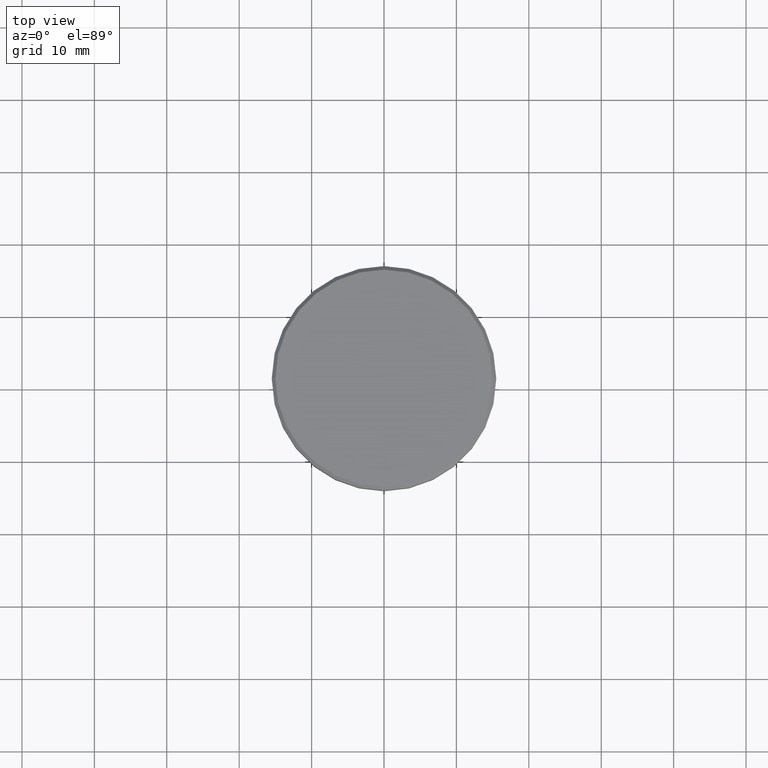
[diagram: clean part render]
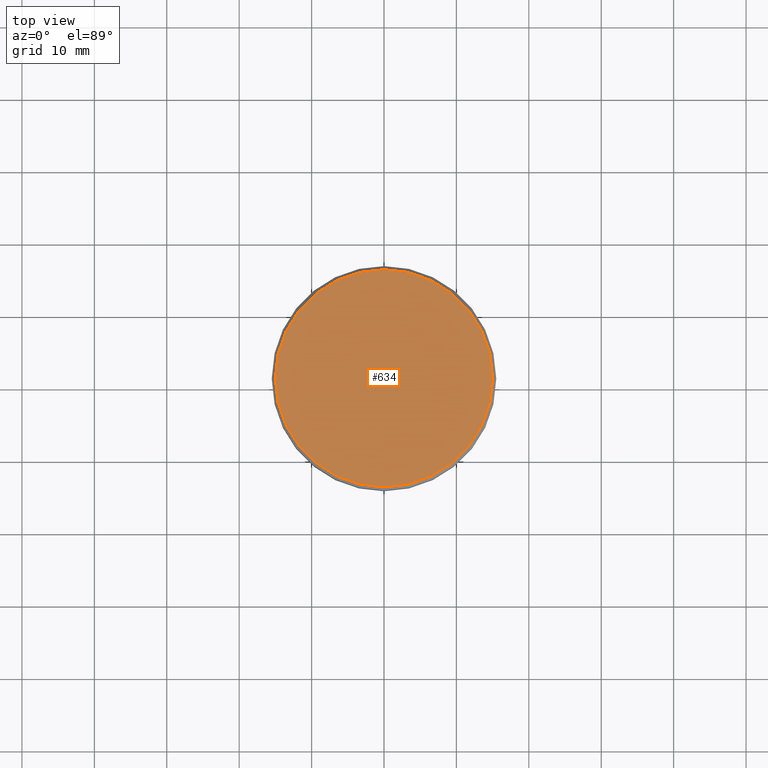
[diagram: same view with one face highlighted and labeled with its STEP entity id]
A machine part, top view. The second image highlights one B-rep face of the part: STEP entity #634.
In plain terms, the highlighted planar face has unit normal (0, -0, 1).
Its self-contained STEP definition (entity closure, byte-faithful):
#17 = VERTEX_POINT ( 'NONE', #867 ) ;
#20 = AXIS2_PLACEMENT_3D ( 'NONE', #751, #98, #919 ) ;
#55 = CARTESIAN_POINT ( 'NONE',  ( -15.00000000000000000, 0.000000000000000000, 0.000000000000000000 ) ) ;
#83 = PLANE ( 'NONE',  #145 ) ;
#92 = CARTESIAN_POINT ( 'NONE',  ( 0.000000000000000000, 0.000000000000000000, 0.000000000000000000 ) ) ;
#98 = DIRECTION ( 'NONE',  ( -0.000000000000000000, -0.000000000000000000, 1.000000000000000000 ) ) ;
#145 = AXIS2_PLACEMENT_3D ( 'NONE', #712, #1159, #602 ) ;
#201 = EDGE_CURVE ( 'NONE', #500, #17, #503, .T. ) ;
#340 = EDGE_CURVE ( 'NONE', #17, #500, #842, .T. ) ;
#344 = DIRECTION ( 'NONE',  ( 1.000000000000000000, 0.000000000000000000, 0.000000000000000000 ) ) ;
#500 = VERTEX_POINT ( 'NONE', #55 ) ;
#503 = CIRCLE ( 'NONE', #826, 15.00000000000000000 ) ;
#573 = ORIENTED_EDGE ( 'NONE', *, *, #201, .T. ) ;
#602 = DIRECTION ( 'NONE',  ( 1.000000000000000000, 0.000000000000000000, 0.000000000000000000 ) ) ;
#614 = FACE_OUTER_BOUND ( 'NONE', #756, .T. ) ;
#634 = ADVANCED_FACE ( 'NONE', ( #614 ), #83, .T. ) ;
#712 = CARTESIAN_POINT ( 'NONE',  ( 0.000000000000000000, 0.000000000000000000, 0.000000000000000000 ) ) ;
#751 = CARTESIAN_POINT ( 'NONE',  ( 0.000000000000000000, 0.000000000000000000, 0.000000000000000000 ) ) ;
#756 = EDGE_LOOP ( 'NONE', ( #573, #1105 ) ) ;
#826 = AXIS2_PLACEMENT_3D ( 'NONE', #92, #1171, #344 ) ;
#842 = CIRCLE ( 'NONE', #20, 15.00000000000000000 ) ;
#867 = CARTESIAN_POINT ( 'NONE',  ( 15.00000000000000000, 1.867586368699713376E-15, 0.000000000000000000 ) ) ;
#919 = DIRECTION ( 'NONE',  ( 1.000000000000000000, 0.000000000000000000, 0.000000000000000000 ) ) ;
#1105 = ORIENTED_EDGE ( 'NONE', *, *, #340, .T. ) ;
#1159 = DIRECTION ( 'NONE',  ( 0.000000000000000000, -0.000000000000000000, 1.000000000000000000 ) ) ;
#1171 = DIRECTION ( 'NONE',  ( -0.000000000000000000, -0.000000000000000000, 1.000000000000000000 ) ) ;